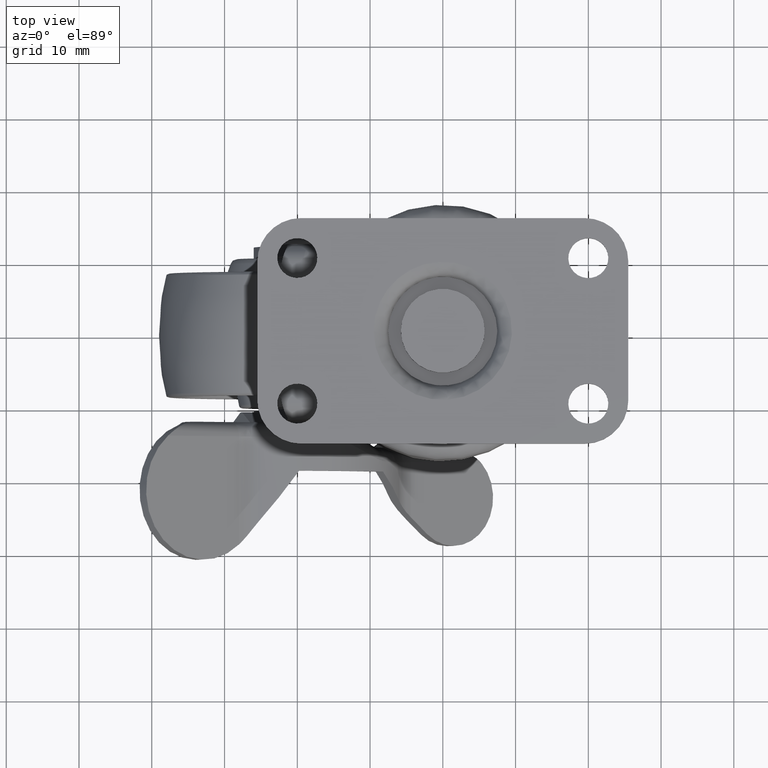
[diagram: clean part render]
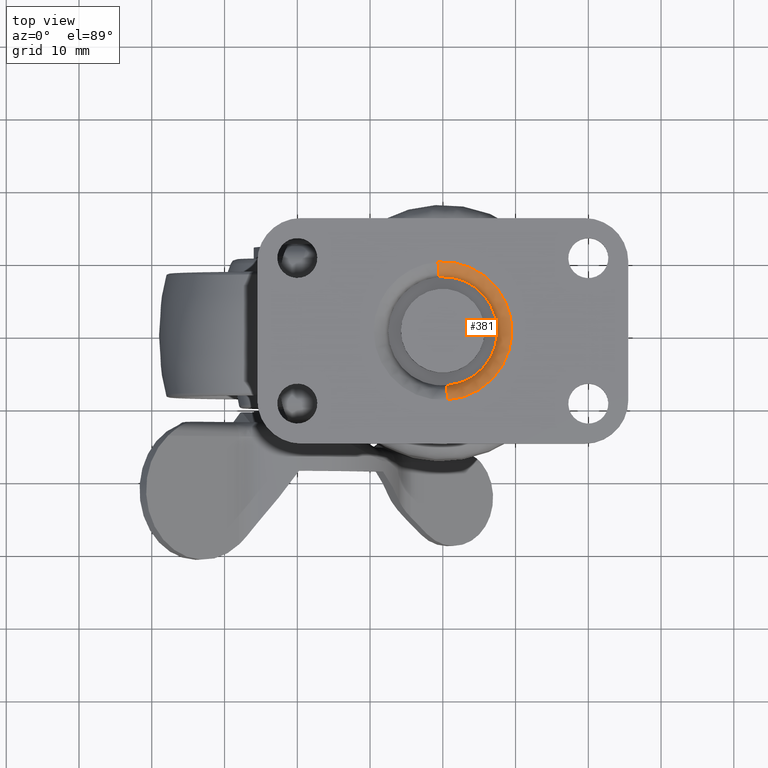
[diagram: same view with one face highlighted and labeled with its STEP entity id]
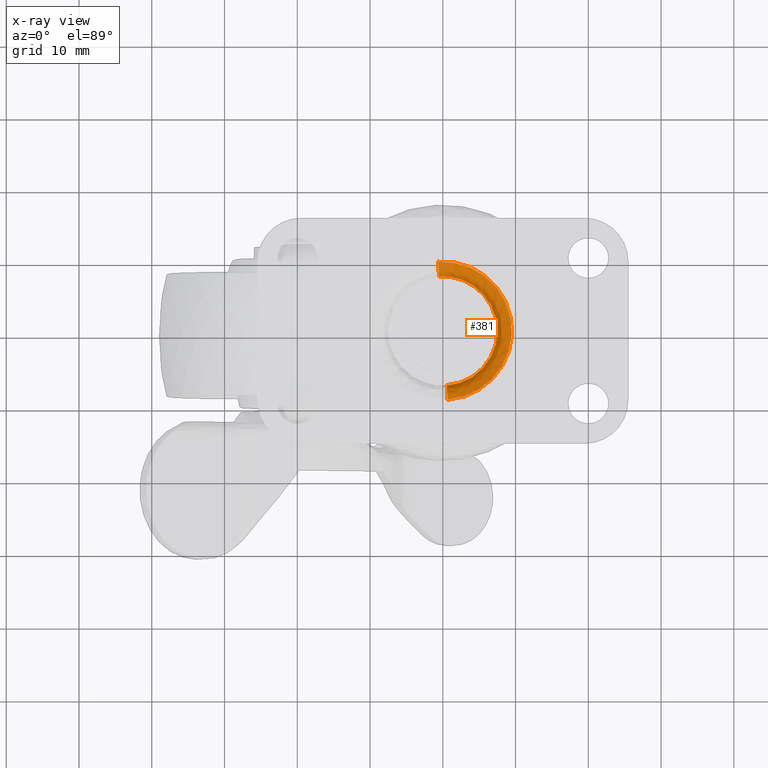
[diagram: x-ray of the same camera — body ghosted, the highlighted face saturated]
A machine part, top view. The second image highlights one B-rep face of the part: STEP entity #381.
The next image is the same camera in x-ray: the body ghosted, the highlighted face saturated — about 0% of this face is hidden behind the body in this view.
In plain terms, the highlighted face is a freeform B-spline surface patch.
Its self-contained STEP definition (entity closure, byte-faithful):
#381=ADVANCED_FACE('',(#1791),#1790,.T.);
#1790=( BOUNDED_SURFACE() B_SPLINE_SURFACE( 2,2,((#4741,#4742,#4743,#4744,#4745),(#4746,#4747,#4748,#4749,#4750),(#4751,#4752,#4753,#4754,#4755),(#4756,#4757,#4758,#4759,#4760),(#4761,#4762,#4763,#4764,#4765)), .UNSPECIFIED.,.F.,.F.,.F.) B_SPLINE_SURFACE_WITH_KNOTS((3,2,3),(3,2,3),(0.00000000000E+00,5.00000000000E-01,1.00000000000E+00),(0.00000000000E+00,5.00000000000E-01,1.00000000000E+00), .UNSPECIFIED. ) GEOMETRIC_REPRESENTATION_ITEM() RATIONAL_B_SPLINE_SURFACE(((1.00000000000E+00,7.07106779094E-01,1.00000000000E+00,7.07106779094E-01,1.00000000000E+00),(7.07106781187E-01,4.99999998520E-01,7.07106781187E-01,4.99999998520E-01,7.07106781187E-01),(1.00000000000E+00,7.07106779094E-01,1.00000000000E+00,7.07106779094E-01,1.00000000000E+00),(7.07106781187E-01,4.99999998520E-01,7.07106781187E-01,4.99999998520E-01,7.07106781187E-01),(1.00000000000E+00,7.07106779094E-01,1.00000000000E+00,7.07106779094E-01,1.00000000000E+00))) REPRESENTATION_ITEM('') SURFACE() );
#1791=FACE_OUTER_BOUND('',#4766,.T.);
#4741=CARTESIAN_POINT('',(1.94770010261E+01,7.48174258267E+00,3.59999999764E+01));
#4742=CARTESIAN_POINT('',(1.94770010277E+01,7.48174255905E+00,3.79999999882E+01));
#4743=CARTESIAN_POINT('',(1.93375346339E+01,9.47687392618E+00,3.80000000000E+01));
#4744=CARTESIAN_POINT('',(1.91980682400E+01,1.14720052933E+01,3.80000000118E+01));
#4745=CARTESIAN_POINT('',(1.91980682400E+01,1.14720052933E+01,3.60000000001E+01));
#4746=CARTESIAN_POINT('',(2.69587436087E+01,8.00474155658E+00,3.59999999764E+01));
#4747=CARTESIAN_POINT('',(2.69587435868E+01,8.00474153131E+00,3.79999999882E+01));
#4748=CARTESIAN_POINT('',(2.88144085600E+01,1.01393392923E+01,3.80000000000E+01));
#4749=CARTESIAN_POINT('',(3.06700735333E+01,1.22739370533E+01,3.80000000118E+01));
#4750=CARTESIAN_POINT('',(3.06700735333E+01,1.22739370533E+01,3.60000000001E+01));
#4751=CARTESIAN_POINT('',(2.74817425827E+01,5.22998973917E-01,3.59999999764E+01));
#4752=CARTESIAN_POINT('',(2.74817425590E+01,5.22998972266E-01,3.79999999882E+01));
#4753=CARTESIAN_POINT('',(2.94768739262E+01,6.62465366132E-01,3.80000000000E+01));
#4754=CARTESIAN_POINT('',(3.14720052933E+01,8.01931759998E-01,3.80000000118E+01));
#4755=CARTESIAN_POINT('',(3.14720052933E+01,8.01931759998E-01,3.60000000001E+01));
#4756=CARTESIAN_POINT('',(2.80047415566E+01,-6.95874360875E+00,3.59999999764E+01));
#4757=CARTESIAN_POINT('',(2.80047415313E+01,-6.95874358678E+00,3.79999999882E+01));
#4758=CARTESIAN_POINT('',(3.01393392923E+01,-8.81440856004E+00,3.80000000000E+01));
#4759=CARTESIAN_POINT('',(3.22739370533E+01,-1.06700735333E+01,3.80000000118E+01));
#4760=CARTESIAN_POINT('',(3.22739370533E+01,-1.06700735333E+01,3.60000000001E+01));
#4761=CARTESIAN_POINT('',(2.05229989739E+01,-7.48174258267E+00,3.59999999764E+01));
#4762=CARTESIAN_POINT('',(2.05229989722E+01,-7.48174255905E+00,3.79999999882E+01));
#4763=CARTESIAN_POINT('',(2.06624653661E+01,-9.47687392617E+00,3.80000000000E+01));
#4764=CARTESIAN_POINT('',(2.08019317600E+01,-1.14720052933E+01,3.80000000118E+01));
#4765=CARTESIAN_POINT('',(2.08019317600E+01,-1.14720052933E+01,3.60000000001E+01));
#4766=EDGE_LOOP('',(#7365,#7366,#7367,#7368,#7369,#7370,#7371));
#7365=ORIENTED_EDGE('',*,*,#8451,.T.);
#7366=ORIENTED_EDGE('',*,*,#8459,.T.);
#7367=ORIENTED_EDGE('',*,*,#8458,.T.);
#7368=ORIENTED_EDGE('',*,*,#8457,.T.);
#7369=ORIENTED_EDGE('',*,*,#8460,.T.);
#7370=ORIENTED_EDGE('',*,*,#8374,.F.);
#7371=ORIENTED_EDGE('',*,*,#8461,.F.);
#8374=EDGE_CURVE('',#10722,#10729,#10730,.T.);
#8451=EDGE_CURVE('',#11235,#11228,#11236,.T.);
#8457=EDGE_CURVE('',#11276,#11269,#11277,.T.);
#8458=EDGE_CURVE('',#11283,#11276,#11284,.T.);
#8459=EDGE_CURVE('',#11228,#11283,#11290,.T.);
#8460=EDGE_CURVE('',#11269,#10729,#11296,.T.);
#8461=EDGE_CURVE('',#11235,#10722,#11302,.T.);
#10722=VERTEX_POINT('',#15944);
#10729=VERTEX_POINT('',#15949);
#10730=CIRCLE('',#15953,9.49999999980E+00);
#11228=VERTEX_POINT('',#16379);
#11235=VERTEX_POINT('',#16382);
#11236=CIRCLE('',#16386,7.50000000000E+00);
#11269=VERTEX_POINT('',#16404);
#11276=VERTEX_POINT('',#16409);
#11277=CIRCLE('',#16413,7.49999999999E+00);
#11283=VERTEX_POINT('',#16414);
#11284=CIRCLE('',#16418,7.50000000004E+00);
#11290=CIRCLE('',#16422,7.50000000000E+00);
#11296=(BOUNDED_CURVE() B_SPLINE_CURVE(2,(#16423,#16424,#16425),.UNSPECIFIED.,.F.,.F.) B_SPLINE_CURVE_WITH_KNOTS((3,3),(4.96805373122E-09,5.00000000000E-01),.UNSPECIFIED.) CURVE() GEOMETRIC_REPRESENTATION_ITEM() RATIONAL_B_SPLINE_CURVE((1.00000000000E+00,7.07106779094E-01,1.00000000000E+00)) REPRESENTATION_ITEM('') );
#11302=(BOUNDED_CURVE() B_SPLINE_CURVE(2,(#16426,#16427,#16428),.UNSPECIFIED.,.F.,.F.) B_SPLINE_CURVE_WITH_KNOTS((3,3),(0.00000000000E+00,4.99999541206E-01),.UNSPECIFIED.) CURVE() GEOMETRIC_REPRESENTATION_ITEM() RATIONAL_B_SPLINE_CURVE((7.50000000000E-01,5.30330285887E-01,7.49999596867E-01)) REPRESENTATION_ITEM('') );
#15944=CARTESIAN_POINT('',(1.93361056558E+01,9.47677393905E+00,3.80000000000E+01));
#15949=CARTESIAN_POINT('',(2.06624653669E+01,-9.47687393806E+00,3.80000000000E+01));
#15950=CARTESIAN_POINT('',(2.00000000002E+01,-1.98854537004E-10,3.80000000000E+01));
#15951=DIRECTION('',(0.00000000000E+00,0.00000000000E+00,-1.00000000000E+00));
#15952=DIRECTION('',(-1.00000000000E+00,2.09319340657E-11,0.00000000000E+00));
#15953=AXIS2_PLACEMENT_3D('',#15950,#15951,#15952);
#16379=CARTESIAN_POINT('',(2.42813017437E+01,6.15795870233E+00,3.59999999853E+01));
#16382=CARTESIAN_POINT('',(1.94770006131E+01,7.48174255380E+00,3.60000000009E+01));
#16383=CARTESIAN_POINT('',(2.00000000000E+01,-1.77635683940E-15,3.60000000014E+01));
#16384=DIRECTION('',(-3.32226973945E-09,-2.99973515838E-10,-1.00000000000E+00));
#16385=DIRECTION('',(-5.70840232492E-01,-8.21061160309E-01,2.14278183345E-09));
#16386=AXIS2_PLACEMENT_3D('',#16383,#16384,#16385);
#16404=CARTESIAN_POINT('',(2.05229989739E+01,-7.48174258267E+00,3.60000000000E+01));
#16409=CARTESIAN_POINT('',(2.05884432180E+01,-7.47688000299E+00,3.60000000000E+01));
#16410=CARTESIAN_POINT('',(2.00000000000E+01,-1.23447918554E-11,3.60000000009E+01));
#16411=DIRECTION('',(-9.23642512658E-12,1.16851937884E-10,-1.00000000000E+00));
#16412=DIRECTION('',(-7.02229985601E-02,9.97531318041E-01,1.17212077081E-10));
#16413=AXIS2_PLACEMENT_3D('',#16410,#16411,#16412);
#16414=CARTESIAN_POINT('',(2.75000000000E+01,0.00000000000E+00,3.60000000000E+01));
#16415=CARTESIAN_POINT('',(2.00000000000E+01,3.34945404745E-11,3.60000000000E+01));
#16416=DIRECTION('',(-9.47390314342E-16,1.00485917356E-15,-1.00000000000E+00));
#16417=DIRECTION('',(-1.00000000000E+00,4.46593872993E-12,9.47390314347E-16));
#16418=AXIS2_PLACEMENT_3D('',#16415,#16416,#16417);
#16419=CARTESIAN_POINT('',(2.00000000000E+01,-1.77635683940E-15,3.60000000014E+01));
#16420=DIRECTION('',(-3.32226973945E-09,-2.99973515838E-10,-1.00000000000E+00));
#16421=DIRECTION('',(-5.70840232492E-01,-8.21061160309E-01,2.14278183345E-09));
#16422=AXIS2_PLACEMENT_3D('',#16419,#16420,#16421);
#16423=CARTESIAN_POINT('',(2.05229989739E+01,-7.48174258267E+00,3.59999999764E+01));
#16424=CARTESIAN_POINT('',(2.05229989722E+01,-7.48174255905E+00,3.79999999882E+01));
#16425=CARTESIAN_POINT('',(2.06624653661E+01,-9.47687392617E+00,3.80000000000E+01));
#16426=CARTESIAN_POINT('',(1.94770010261E+01,7.48174258267E+00,3.59999999764E+01));
#16427=CARTESIAN_POINT('',(1.94770010277E+01,7.48174255905E+00,3.79999973928E+01));
#16428=CARTESIAN_POINT('',(1.93375348148E+01,9.47687133716E+00,3.80000000000E+01));